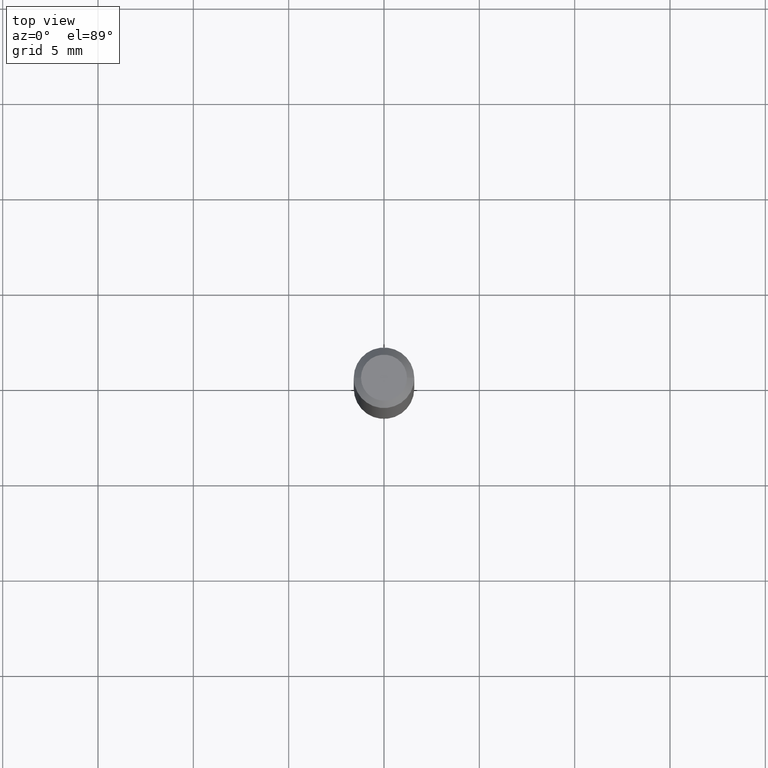
[diagram: clean part render]
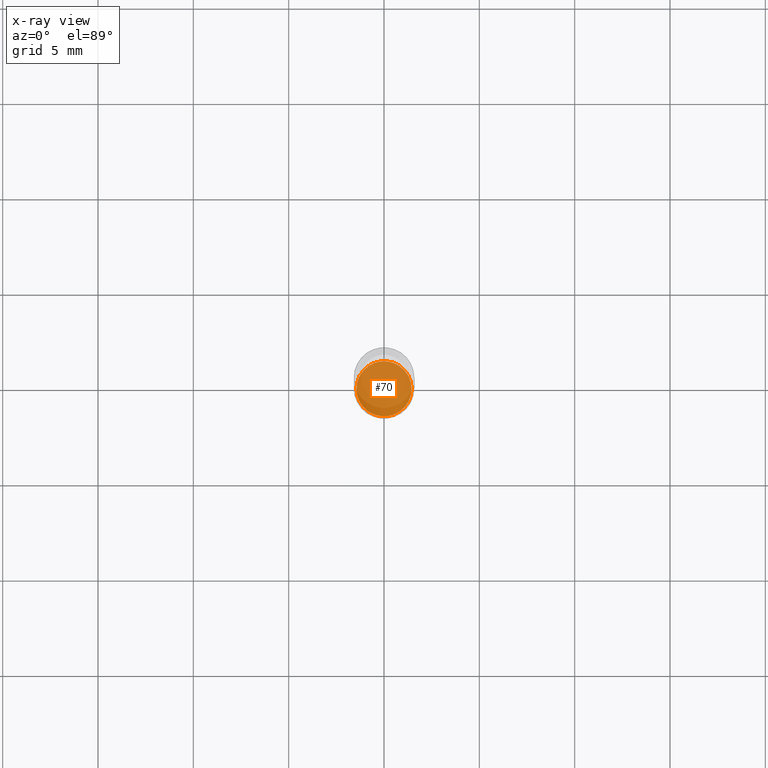
[diagram: x-ray — body ghosted, one internal face saturated and labeled with its STEP entity id]
A machine part, top view, then the same camera in x-ray: the body is ghosted and one INTERNAL B-rep face — a face not visible from any outside direction — is saturated and labeled: STEP entity #70.
In plain terms, the highlighted planar face has unit normal (-0, 0, 1).
Its self-contained STEP definition (entity closure, byte-faithful):
#19 = CARTESIAN_POINT ( 'NONE',  ( 3.246359840210769662E-29, -4.634941477314276569E-15, -1.327500000000000346 ) ) ;
#34 = AXIS2_PLACEMENT_3D ( 'NONE', #63, #222, #374 ) ;
#60 = DIRECTION ( 'NONE',  ( 1.000000000000000000, -6.982962677686268288E-15, 0.000000000000000000 ) ) ;
#63 = CARTESIAN_POINT ( 'NONE',  ( 3.246359840210769662E-29, -4.634941477314276569E-15, -1.327500000000000346 ) ) ;
#70 = ADVANCED_FACE ( 'NONE', ( #362 ), #182, .F. ) ;
#99 = DIRECTION ( 'NONE',  ( -2.445468806185136597E-29, 3.491481338843145583E-15, 1.000000000000000000 ) ) ;
#100 = EDGE_CURVE ( 'NONE', #420, #294, #153, .T. ) ;
#133 = ORIENTED_EDGE ( 'NONE', *, *, #334, .F. ) ;
#153 = CIRCLE ( 'NONE', #34, 0.05699999999999997430 ) ;
#182 = PLANE ( 'NONE',  #309 ) ;
#191 = CIRCLE ( 'NONE', #367, 0.05699999999999997430 ) ;
#203 = EDGE_LOOP ( 'NONE', ( #380, #133 ) ) ;
#222 = DIRECTION ( 'NONE',  ( -2.445468806185136597E-29, 3.491481338843145583E-15, 1.000000000000000000 ) ) ;
#263 = DIRECTION ( 'NONE',  ( -2.438088387897960049E-29, 3.491481338843145188E-15, 1.000000000000000000 ) ) ;
#294 = VERTEX_POINT ( 'NONE', #475 ) ;
#309 = AXIS2_PLACEMENT_3D ( 'NONE', #412, #263, #493 ) ;
#330 = CARTESIAN_POINT ( 'NONE',  ( 0.05699999999999997430, -5.032970349942393582E-15, -1.327500000000000346 ) ) ;
#334 = EDGE_CURVE ( 'NONE', #294, #420, #191, .T. ) ;
#362 = FACE_OUTER_BOUND ( 'NONE', #203, .T. ) ;
#367 = AXIS2_PLACEMENT_3D ( 'NONE', #19, #99, #60 ) ;
#374 = DIRECTION ( 'NONE',  ( 1.000000000000000000, -6.982962677686268288E-15, 0.000000000000000000 ) ) ;
#380 = ORIENTED_EDGE ( 'NONE', *, *, #100, .F. ) ;
#412 = CARTESIAN_POINT ( 'NONE',  ( 3.246359840210769662E-29, -4.634941477314276569E-15, -1.327500000000000346 ) ) ;
#420 = VERTEX_POINT ( 'NONE', #330 ) ;
#475 = CARTESIAN_POINT ( 'NONE',  ( -0.05699999999999997430, -4.227282890756908691E-15, -1.327500000000000346 ) ) ;
#493 = DIRECTION ( 'NONE',  ( 1.000000000000000000, -6.982962677686265922E-15, 4.876176775795935793E-29 ) ) ;